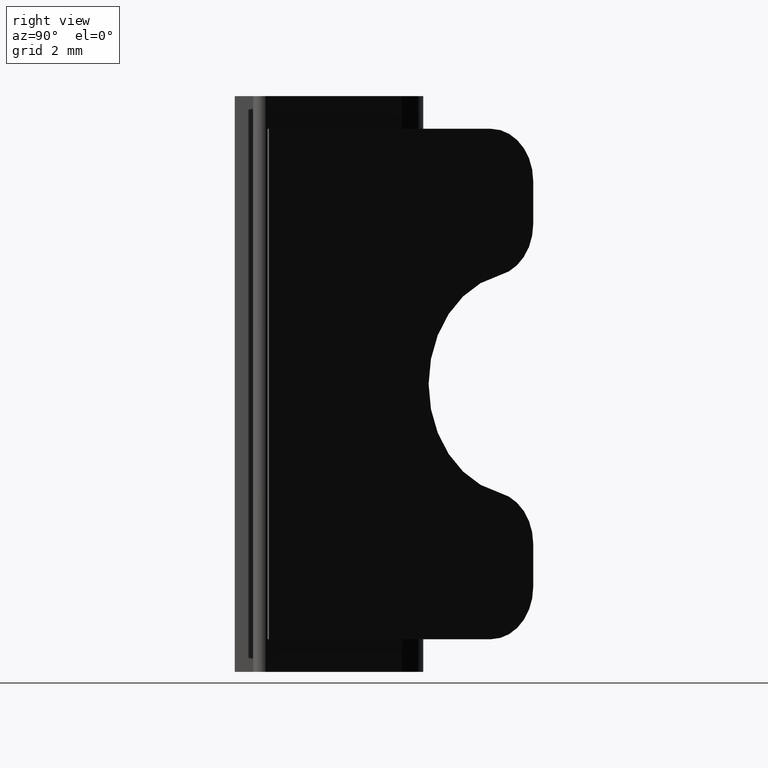
[diagram: clean part render]
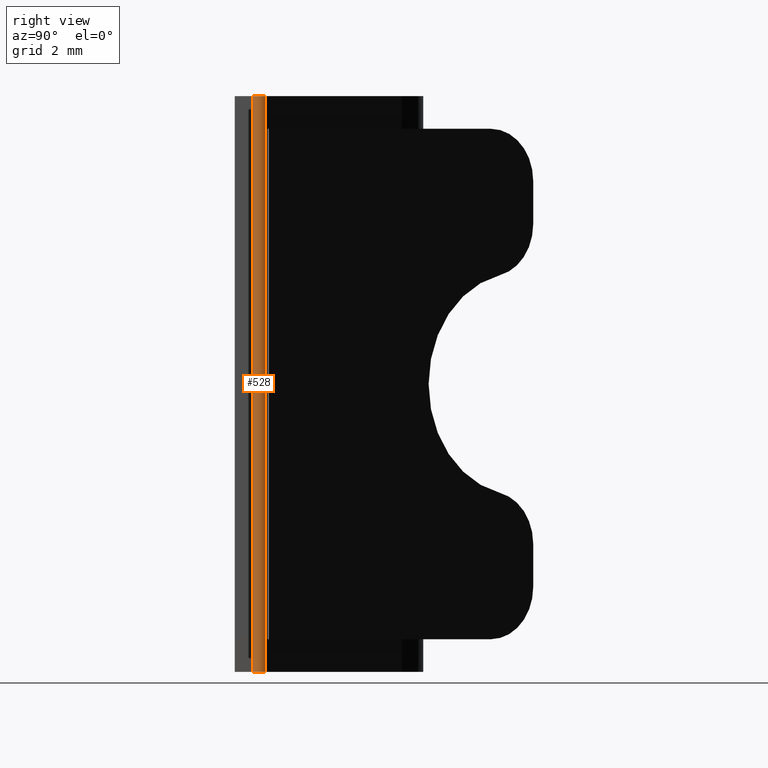
[diagram: same view with one face highlighted and labeled with its STEP entity id]
A machine part, right view. The second image highlights one B-rep face of the part: STEP entity #528.
In plain terms, the highlighted cylindrical surface (edge-blend (fillet) strip) has radius 0.3 mm, axis along (0, 0, 1).
Its self-contained STEP definition (entity closure, byte-faithful):
#49=FACE_OUTER_BOUND('',#77,.T.);
#77=EDGE_LOOP('',(#414,#415,#416,#417));
#118=LINE('',#822,#172);
#119=LINE('',#825,#173);
#172=VECTOR('',#668,22.);
#173=VECTOR('',#671,22.);
#213=CIRCLE('',#569,0.3);
#214=CIRCLE('',#570,0.3);
#246=VERTEX_POINT('',#818);
#247=VERTEX_POINT('',#819);
#248=VERTEX_POINT('',#821);
#249=VERTEX_POINT('',#823);
#308=EDGE_CURVE('',#246,#247,#213,.T.);
#309=EDGE_CURVE('',#247,#248,#118,.T.);
#310=EDGE_CURVE('',#248,#249,#214,.T.);
#311=EDGE_CURVE('',#249,#246,#119,.T.);
#414=ORIENTED_EDGE('',*,*,#308,.T.);
#415=ORIENTED_EDGE('',*,*,#309,.T.);
#416=ORIENTED_EDGE('',*,*,#310,.T.);
#417=ORIENTED_EDGE('',*,*,#311,.T.);
#511=CYLINDRICAL_SURFACE('',#568,0.3);
#528=ADVANCED_FACE('',(#49),#511,.T.);
#568=AXIS2_PLACEMENT_3D('',#817,#664,#665);
#569=AXIS2_PLACEMENT_3D('',#820,#666,#667);
#570=AXIS2_PLACEMENT_3D('',#824,#669,#670);
#664=DIRECTION('center_axis',(0.,0.,1.));
#665=DIRECTION('ref_axis',(0.891632376414828,-0.452760096882274,0.));
#666=DIRECTION('center_axis',(0.,0.,-1.));
#667=DIRECTION('ref_axis',(0.891632376414828,-0.452760096882274,0.));
#668=DIRECTION('',(0.,0.,-1.));
#669=DIRECTION('center_axis',(0.,0.,1.));
#670=DIRECTION('ref_axis',(0.891632376414828,-0.452760096882274,0.));
#671=DIRECTION('',(0.,0.,1.));
#817=CARTESIAN_POINT('Origin',(6.15920210335143,0.3,0.));
#818=CARTESIAN_POINT('',(6.4014194400288,0.477004976802693,22.));
#819=CARTESIAN_POINT('',(6.15920210335143,3.72680356681451E-18,22.));
#820=CARTESIAN_POINT('Origin',(6.15920210335143,0.3,22.));
#821=CARTESIAN_POINT('',(6.15920210335143,3.72680356681451E-18,0.));
#822=CARTESIAN_POINT('',(6.15920210335143,0.,0.));
#823=CARTESIAN_POINT('',(6.4014194400288,0.477004976802693,0.));
#824=CARTESIAN_POINT('Origin',(6.15920210335143,0.3,0.));
#825=CARTESIAN_POINT('',(6.4014194400288,0.477004976802693,0.));